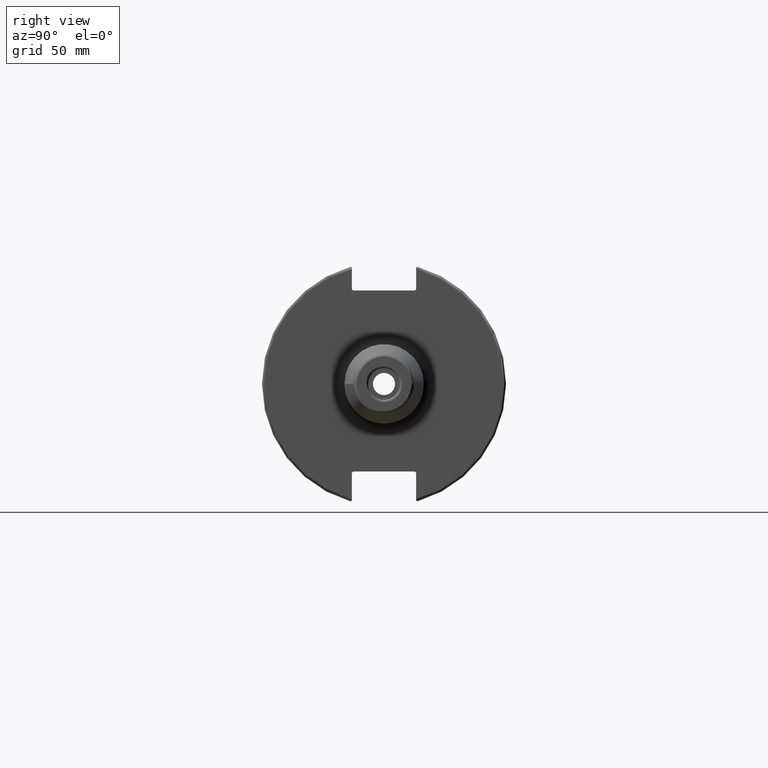
[diagram: clean part render]
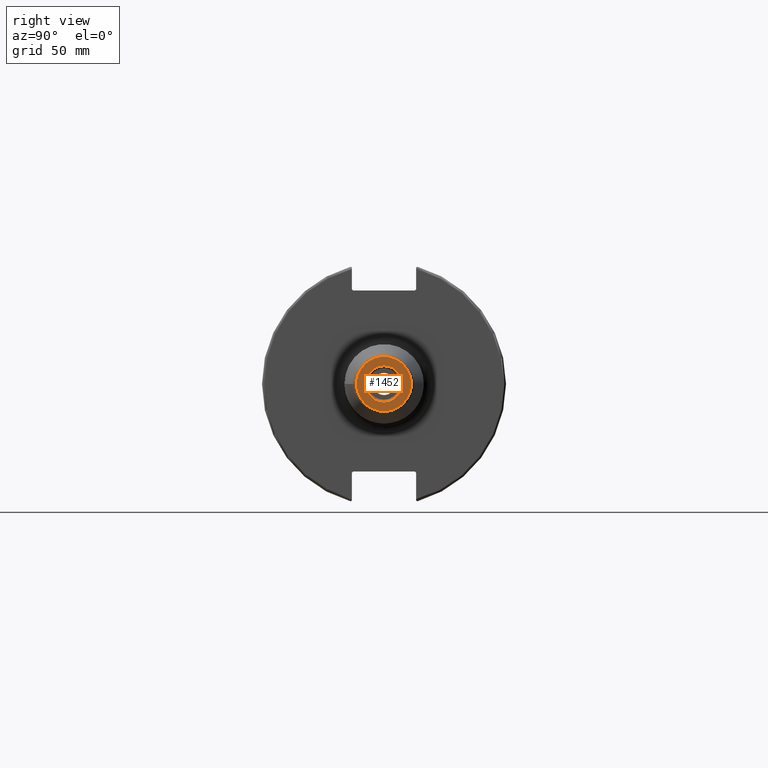
[diagram: same view with one face highlighted and labeled with its STEP entity id]
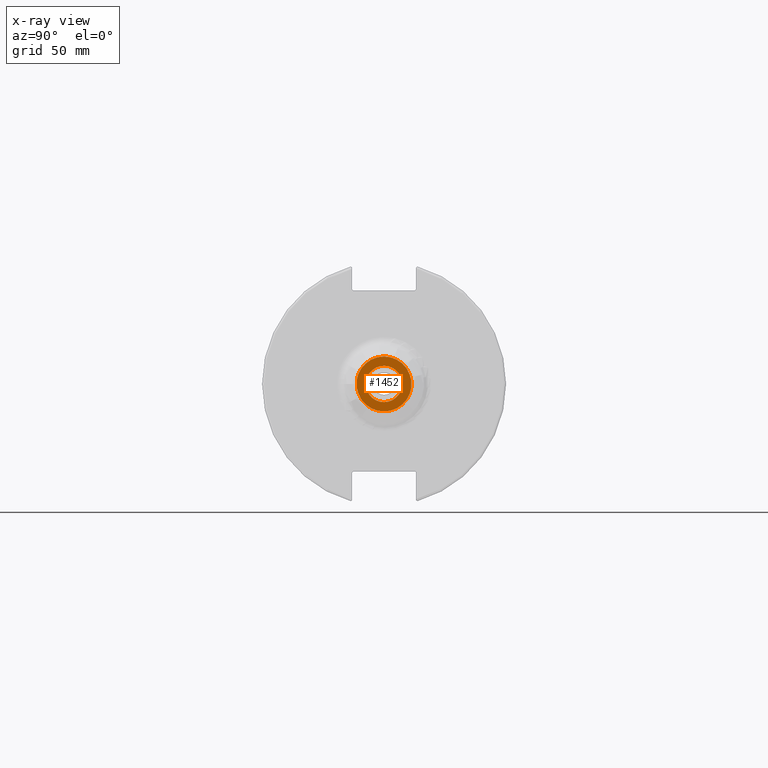
[diagram: x-ray of the same camera — body ghosted, the highlighted face saturated]
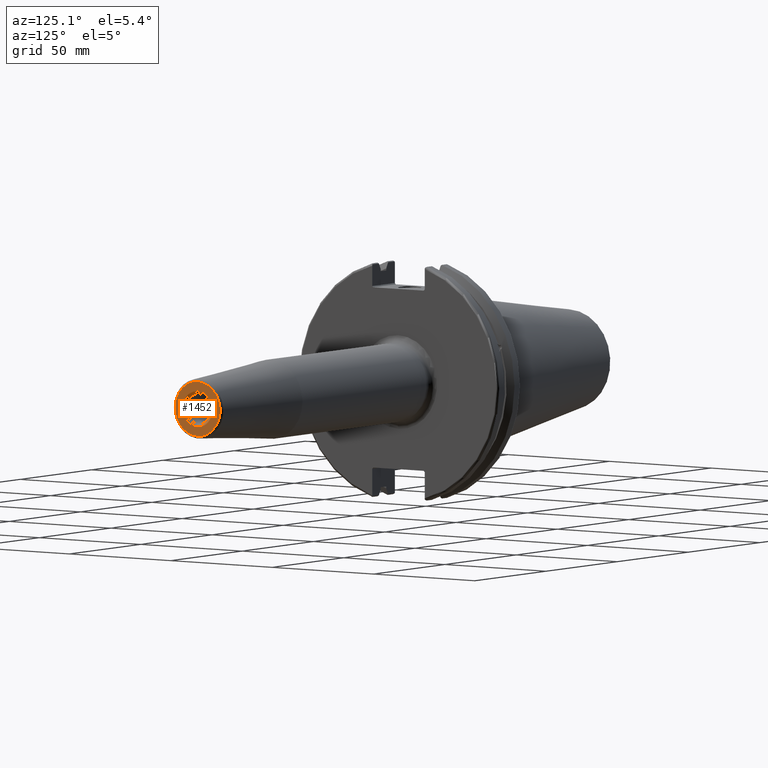
[diagram: same view with one face highlighted and labeled with its STEP entity id]
A machine part, right view. The second image highlights one B-rep face of the part: STEP entity #1452.
The next image is the same camera in x-ray: the body ghosted, the highlighted face saturated — about 0% of this face is hidden behind the body in this view.
A second angle (auxiliary view) of the same face is appended — the face is thin or edge-on in the first view.
In plain terms, the highlighted planar face has unit normal (1, 0, 0).
Its self-contained STEP definition (entity closure, byte-faithful):
#295=FACE_BOUND('',#440,.T.);
#315=PLANE('',#1565);
#353=FACE_OUTER_BOUND('',#439,.T.);
#439=EDGE_LOOP('',(#999));
#440=EDGE_LOOP('',(#1000));
#547=CIRCLE('',#1564,7.35000000000001);
#548=CIRCLE('',#1566,11.0756095083418);
#622=VERTEX_POINT('',#2152);
#623=VERTEX_POINT('',#2156);
#773=EDGE_CURVE('',#622,#622,#547,.T.);
#774=EDGE_CURVE('',#623,#623,#548,.T.);
#999=ORIENTED_EDGE('',*,*,#774,.F.);
#1000=ORIENTED_EDGE('',*,*,#773,.F.);
#1452=ADVANCED_FACE('',(#353,#295),#315,.T.);
#1564=AXIS2_PLACEMENT_3D('',#2154,#1734,#1735);
#1565=AXIS2_PLACEMENT_3D('',#2155,#1736,#1737);
#1566=AXIS2_PLACEMENT_3D('',#2157,#1738,#1739);
#1734=DIRECTION('center_axis',(1.,0.,0.));
#1735=DIRECTION('ref_axis',(0.,-1.,1.83697019872103E-16));
#1736=DIRECTION('center_axis',(1.,0.,0.));
#1737=DIRECTION('ref_axis',(0.,0.,-1.));
#1738=DIRECTION('center_axis',(-1.,0.,0.));
#1739=DIRECTION('ref_axis',(0.,-1.,1.83697019872103E-16));
#2152=CARTESIAN_POINT('',(160.,-9.00115397373306E-16,7.35000000000001));
#2154=CARTESIAN_POINT('Origin',(160.,0.,0.));
#2155=CARTESIAN_POINT('Origin',(160.,6.35000000000001,0.));
#2156=CARTESIAN_POINT('',(160.,-1.35637097329968E-15,11.0756095083418));
#2157=CARTESIAN_POINT('Origin',(160.,0.,0.));